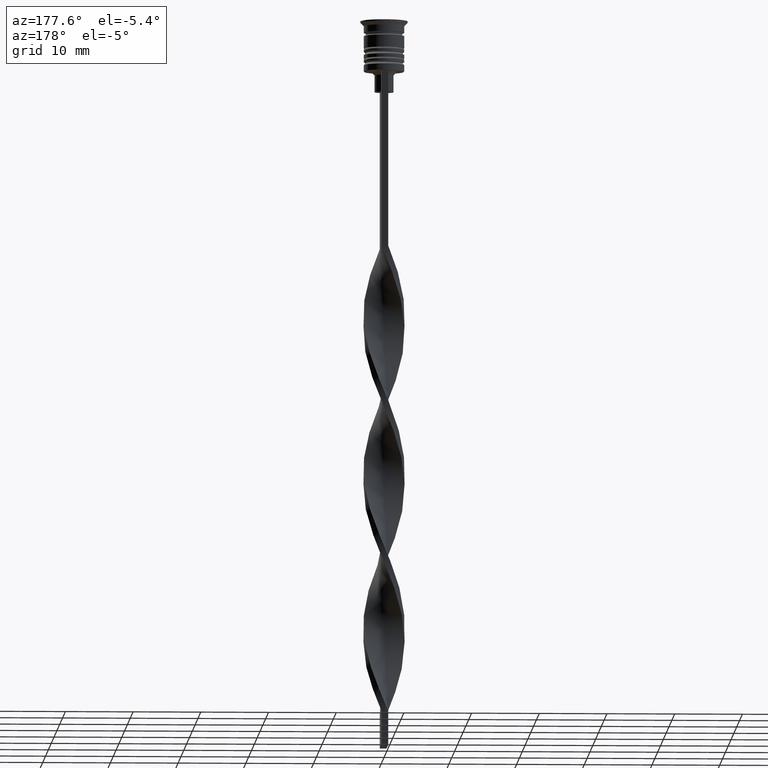
[diagram: clean part render]
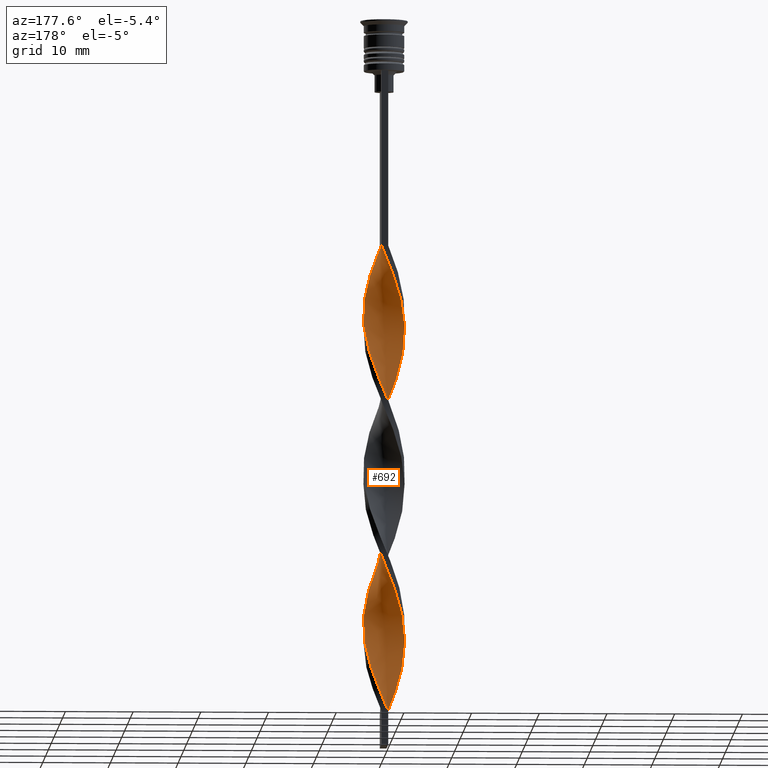
[diagram: same view with one face highlighted and labeled with its STEP entity id]
A machine part, auxiliary view. The second image highlights one B-rep face of the part: STEP entity #692.
In plain terms, the highlighted face is a freeform B-spline surface patch.
Its self-contained STEP definition (entity closure, byte-faithful):
#5 = CARTESIAN_POINT ( 'NONE',  ( 3.038394962421823831, 0.1347443962830572051, -44.11538461538462030 ) ) ;
#7 = CARTESIAN_POINT ( 'NONE',  ( -2.184919224315390984, 2.115686173140295612, -40.57692307692308020 ) ) ;
#22 = VERTEX_POINT ( 'NONE', #2972 ) ;
#23 = CARTESIAN_POINT ( 'NONE',  ( 1.836897528957912362, 2.424006490937744118, -75.96153846153846700 ) ) ;
#24 = CARTESIAN_POINT ( 'NONE',  ( 0.2324760841496463504, -3.032483284421934933, -58.26923076923077360 ) ) ;
#35 = CARTESIAN_POINT ( 'NONE',  ( -0.4999999999999995559, 3.000000000000000000, -102.5000000000000142 ) ) ;
#37 = CARTESIAN_POINT ( 'NONE',  ( 2.982351171577512172, -0.5963065397849001137, -88.34615384615385381 ) ) ;
#48 = CARTESIAN_POINT ( 'NONE',  ( -2.752983971046547129, 1.292702307246639704, -63.57692307692308731 ) ) ;
#51 = CARTESIAN_POINT ( 'NONE',  ( -1.928028413296781762, 2.380983398537114049, -39.69230769230769340 ) ) ;
#71 = CARTESIAN_POINT ( 'NONE',  ( -3.054755894246598658, -0.2341835458667257397, -92.76923076923077360 ) ) ;
#84 = CARTESIAN_POINT ( 'NONE',  ( 2.813682533735953228, 1.212256617197150721, -92.76923076923075939 ) ) ;
#88 = CARTESIAN_POINT ( 'NONE',  ( -2.813682533735953228, 1.212256617197151165, -89.23076923076924061 ) ) ;
#122 = CARTESIAN_POINT ( 'NONE',  ( 2.596021493184669904, 1.626975080790203032, -73.30769230769232081 ) ) ;
#125 = CARTESIAN_POINT ( 'NONE',  ( -2.184919224315390984, 2.115686173140295612, -40.57692307692308020 ) ) ;
#143 = FACE_OUTER_BOUND ( 'NONE', #3193, .T. ) ;
#156 = CARTESIAN_POINT ( 'NONE',  ( 3.038394962421823831, 0.1347443962830572051, -44.11538461538462030 ) ) ;
#158 = CARTESIAN_POINT ( 'NONE',  ( -2.917858282166500228, 0.8579644778149966289, -44.11538461538462030 ) ) ;
#195 = CARTESIAN_POINT ( 'NONE',  ( 1.928028413296782428, 2.380983398537112716, -50.30769230769231370 ) ) ;
#197 = CARTESIAN_POINT ( 'NONE',  ( -2.813682533735953228, 1.212256617197151165, -43.23076923076922640 ) ) ;
#199 = B_SPLINE_CURVE_WITH_KNOTS ( 'NONE', 3,
 ( #2960, #3431, #2913, #1833 ),
 .UNSPECIFIED., .F., .F.,
 ( 4, 4 ),
 ( 0.000000000000000000, 1.000000000000000000 ),
 .UNSPECIFIED. ) ;
#211 = CARTESIAN_POINT ( 'NONE',  ( 1.203417901575699167, -2.793167620134377582, -81.26923076923077360 ) ) ;
#213 = CARTESIAN_POINT ( 'NONE',  ( -0.6006862186325128139, 3.004255577232739949, -82.15384615384617462 ) ) ;
#224 = CARTESIAN_POINT ( 'NONE',  ( 2.131225204431203668, -2.200966749995606264, -83.92307692307693401 ) ) ;
#228 = CARTESIAN_POINT ( 'NONE',  ( 1.203417901575699167, -2.793167620134377582, -35.26923076923077360 ) ) ;
#240 = CARTESIAN_POINT ( 'NONE',  ( 1.615112600636835927, 2.577093573633700174, -97.19230769230770761 ) ) ;
#242 = CARTESIAN_POINT ( 'NONE',  ( -2.131225204431204112, -2.200966749995605820, -98.07692307692308020 ) ) ;
#255 = CARTESIAN_POINT ( 'NONE',  ( -2.813682533735953228, 1.212256617197151165, -89.23076923076922640 ) ) ;
#259 = VERTEX_POINT ( 'NONE', #624 ) ;
#267 = ORIENTED_EDGE ( 'NONE', *, *, #3148, .F. ) ;
#270 = DIRECTION ( 'NONE',  ( 0.000000000000000000, 1.000000000000000000, 0.000000000000000000 ) ) ;
#272 = CARTESIAN_POINT ( 'NONE',  ( 1.928028413296782428, 2.380983398537112716, -50.30769230769232081 ) ) ;
#276 = CARTESIAN_POINT ( 'NONE',  ( -0.9514415033047005643, 2.888729662981513790, -37.03846153846154010 ) ) ;
#294 = CARTESIAN_POINT ( 'NONE',  ( 1.928028413296782428, 2.380983398537112716, -96.30769230769232081 ) ) ;
#295 = CARTESIAN_POINT ( 'NONE',  ( -2.131225204431204112, -2.200966749995605820, -52.07692307692308020 ) ) ;
#304 = CARTESIAN_POINT ( 'NONE',  ( 3.054755894246598658, -0.2341835458667260728, -89.23076923076924061 ) ) ;
#305 = CARTESIAN_POINT ( 'NONE',  ( -2.627746284534977050, -1.531322782470314170, -70.65384615384616041 ) ) ;
#307 = CARTESIAN_POINT ( 'NONE',  ( -1.302196787976888315, 2.773203748730288520, -37.92307692307692690 ) ) ;
#316 = CARTESIAN_POINT ( 'NONE',  ( 1.203417901575699167, -2.793167620134377582, -81.26923076923077360 ) ) ;
#319 = CARTESIAN_POINT ( 'NONE',  ( 2.441810035333999540, -1.850388947743479173, -64.46153846153845279 ) ) ;
#337 = CARTESIAN_POINT ( 'NONE',  ( 3.038394962421823831, 0.1347443962830572051, -90.11538461538462741 ) ) ;
#352 = CARTESIAN_POINT ( 'NONE',  ( 2.184919224315391872, 2.115686173140295168, -95.42307692307693401 ) ) ;
#356 = CARTESIAN_POINT ( 'NONE',  ( 1.928028413296780874, -2.380983398537114493, -62.69230769230770051 ) ) ;
#394 = CARTESIAN_POINT ( 'NONE',  ( 0.4999999999999998890, 3.000000000000000000, -79.50000000000001421 ) ) ;
#397 = CARTESIAN_POINT ( 'NONE',  ( -2.909946448908425243, -0.9584295337030731554, -48.53846153846154010 ) ) ;
#411 = CARTESIAN_POINT ( 'NONE',  ( -2.131225204431203668, 2.200966749995606708, -60.92307692307692690 ) ) ;
#414 = CARTESIAN_POINT ( 'NONE',  ( 2.184919224315390984, -2.115686173140295612, -63.57692307692308731 ) ) ;
#427 = CARTESIAN_POINT ( 'NONE',  ( 2.184919224315391872, 2.115686173140295168, -49.42307692307693401 ) ) ;
#431 = CARTESIAN_POINT ( 'NONE',  ( -1.203417901575700277, -2.793167620134377138, -54.73076923076923350 ) ) ;
#451 = CARTESIAN_POINT ( 'NONE',  ( -2.596021493184667683, 1.626975080790206141, -62.69230769230770051 ) ) ;
#454 = CARTESIAN_POINT ( 'NONE',  ( 1.928028413296780874, -2.380983398537114049, -62.69230769230770051 ) ) ;
#466 = VERTEX_POINT ( 'NONE', #1927 ) ;
#468 = CARTESIAN_POINT ( 'NONE',  ( -1.615112600636836371, -2.577093573633699730, -74.19230769230769340 ) ) ;
#470 = CARTESIAN_POINT ( 'NONE',  ( -0.8642659496667827179, -2.939289008388869640, -101.6153846153846132 ) ) ;
#482 = CARTESIAN_POINT ( 'NONE',  ( -0.1357340503332169490, 3.060710991611130360, -55.61538461538462741 ) ) ;
#484 = CARTESIAN_POINT ( 'NONE',  ( 2.917858282166500672, 0.8579644778149956297, -45.88461538461538680 ) ) ;
#504 = CARTESIAN_POINT ( 'NONE',  ( -2.909946448908425243, -0.9584295337030731554, -94.53846153846153300 ) ) ;
#519 = CARTESIAN_POINT ( 'NONE',  ( -1.302196787976888093, 2.773203748730288520, -83.92307692307691980 ) ) ;
#520 = CARTESIAN_POINT ( 'NONE',  ( -0.1357340503332189752, -3.060710991611130360, -57.38461538461538680 ) ) ;
#534 = CARTESIAN_POINT ( 'NONE',  ( -2.752983971046547129, -1.292702307246638815, -95.42307692307693401 ) ) ;
#535 = CARTESIAN_POINT ( 'NONE',  ( -2.982351171577512616, -0.5963065397848991145, -47.65384615384616041 ) ) ;
#546 = CARTESIAN_POINT ( 'NONE',  ( 2.813682533735953228, 1.212256617197150721, -92.76923076923077360 ) ) ;
#553 = CARTESIAN_POINT ( 'NONE',  ( -2.752983971046547129, -1.292702307246638815, -49.42307692307693401 ) ) ;
#571 = CARTESIAN_POINT ( 'NONE',  ( -1.542569853484615727, 2.647046231879885525, -59.15384615384616041 ) ) ;
#573 = CARTESIAN_POINT ( 'NONE',  ( -0.6006862186325128139, 3.004255577232739949, -36.15384615384615330 ) ) ;
#583 = CARTESIAN_POINT ( 'NONE',  ( -2.909946448908424799, 0.9584295337030754869, -64.46153846153845279 ) ) ;
#586 = CARTESIAN_POINT ( 'NONE',  ( 2.363623348807936786, 1.913970915392904315, -74.19230769230769340 ) ) ;
#598 = CARTESIAN_POINT ( 'NONE',  ( -2.982351171577512172, 0.5963065397849003357, -65.34615384615385381 ) ) ;
#602 = CARTESIAN_POINT ( 'NONE',  ( 2.131225204431204556, 2.200966749995605820, -75.07692307692308020 ) ) ;
#619 = CARTESIAN_POINT ( 'NONE',  ( -3.054755894246598658, 0.2341835458667258230, -66.23076923076922640 ) ) ;
#624 = CARTESIAN_POINT ( 'NONE',  ( -0.4999999999999995559, 3.000000000000000000, -102.5000000000000142 ) ) ;
#641 = CARTESIAN_POINT ( 'NONE',  ( -0.2324760841496473773, 3.032483284421934933, -35.26923076923077360 ) ) ;
#655 = CARTESIAN_POINT ( 'NONE',  ( -3.038394962421823386, 0.1347443962830582320, -91.88461538461540101 ) ) ;
#658 = CARTESIAN_POINT ( 'NONE',  ( 2.982351171577512616, 0.5963065397848995586, -70.65384615384616041 ) ) ;
#678 = CARTESIAN_POINT ( 'NONE',  ( 0.1357340503332165882, -3.060710991611130805, -78.61538461538461320 ) ) ;
#681 = CARTESIAN_POINT ( 'NONE',  ( -2.363623348807936342, -1.913970915392904981, -51.19230769230769340 ) ) ;
#692 = ADVANCED_FACE ( 'NONE', ( #143 ), #2614, .T. ) ;
#698 = CARTESIAN_POINT ( 'NONE',  ( -2.752983971046547129, 1.292702307246639704, -63.57692307692308731 ) ) ;
#701 = CARTESIAN_POINT ( 'NONE',  ( -1.836897528957911030, -2.424006490937745006, -52.96153846153845990 ) ) ;
#719 = CARTESIAN_POINT ( 'NONE',  ( 1.542569853484617060, -2.647046231879885081, -36.15384615384615330 ) ) ;
#721 = CARTESIAN_POINT ( 'NONE',  ( 2.627746284534976606, -1.531322782470315058, -65.34615384615385381 ) ) ;
#741 = CARTESIAN_POINT ( 'NONE',  ( -2.363623348807935898, 1.913970915392906536, -61.80769230769231370 ) ) ;
#745 = CARTESIAN_POINT ( 'NONE',  ( -2.917858282166500228, 0.8579644778149966289, -90.11538461538462741 ) ) ;
#756 = CARTESIAN_POINT ( 'NONE',  ( 2.363623348807935898, -1.913970915392906091, -38.80769230769230660 ) ) ;
#759 = CARTESIAN_POINT ( 'NONE',  ( -3.022034030597048559, 0.5036723384328415376, -91.00000000000001421 ) ) ;
#772 = CARTESIAN_POINT ( 'NONE',  ( 1.302196787976888759, 2.773203748730288076, -52.07692307692308020 ) ) ;
#787 = CARTESIAN_POINT ( 'NONE',  ( 2.131225204431204556, 2.200966749995605820, -75.07692307692308020 ) ) ;
#788 = CARTESIAN_POINT ( 'NONE',  ( -0.8642659496667828289, -2.939289008388869640, -55.61538461538462741 ) ) ;
#804 = CARTESIAN_POINT ( 'NONE',  ( -0.4999999999999995559, 3.000000000000000000, -56.50000000000000711 ) ) ;
#822 = CARTESIAN_POINT ( 'NONE',  ( 1.302196787976888093, -2.773203748730288964, -60.92307692307692690 ) ) ;
#831 = CARTESIAN_POINT ( 'NONE',  ( 0.9514415033047012304, 2.888729662981513346, -98.96153846153848122 ) ) ;
#833 = ORIENTED_EDGE ( 'NONE', *, *, #2757, .T. ) ;
#835 = CARTESIAN_POINT ( 'NONE',  ( 0.4999999999999998890, -3.000000000000000000, -79.50000000000001421 ) ) ;
#850 = CARTESIAN_POINT ( 'NONE',  ( -0.4999999999999995559, 3.000000000000000000, -102.5000000000000142 ) ) ;
#853 = CARTESIAN_POINT ( 'NONE',  ( -3.022034030597048559, 0.5036723384328415376, -45.00000000000000711 ) ) ;
#864 = CARTESIAN_POINT ( 'NONE',  ( -2.917858282166500228, 0.8579644778149966289, -90.11538461538462741 ) ) ;
#877 = CARTESIAN_POINT ( 'NONE',  ( -0.2324760841496502084, -3.032483284421934489, -77.73076923076924061 ) ) ;
#881 = CARTESIAN_POINT ( 'NONE',  ( 2.813682533735953228, -1.212256617197150721, -66.23076923076922640 ) ) ;
#918 = CARTESIAN_POINT ( 'NONE',  ( -1.615112600636834816, 2.577093573633700618, -84.80769230769232081 ) ) ;
#938 = CARTESIAN_POINT ( 'NONE',  ( -2.441810035334000872, 1.850388947743477841, -87.46153846153849543 ) ) ;
#962 = CARTESIAN_POINT ( 'NONE',  ( 2.917858282166500672, 0.8579644778149956297, -45.88461538461538680 ) ) ;
#965 = CARTESIAN_POINT ( 'NONE',  ( 0.1357340503332183645, 3.060710991611130360, -34.38461538461538680 ) ) ;
#980 = CARTESIAN_POINT ( 'NONE',  ( -0.8642659496667810526, 2.939289008388869640, -57.38461538461538680 ) ) ;
#982 = CARTESIAN_POINT ( 'NONE',  ( 1.615112600636834372, -2.577093573633701062, -61.80769230769231370 ) ) ;
#995 = CARTESIAN_POINT ( 'NONE',  ( -2.184919224315392317, -2.115686173140294724, -72.42307692307691980 ) ) ;
#997 = CARTESIAN_POINT ( 'NONE',  ( -2.131225204431204112, -2.200966749995605820, -52.07692307692308020 ) ) ;
#1016 = CARTESIAN_POINT ( 'NONE',  ( 2.982351171577512172, -0.5963065397849001137, -42.34615384615385381 ) ) ;
#1019 = CARTESIAN_POINT ( 'NONE',  ( 0.8642659496667817187, -2.939289008388869640, -34.38461538461538680 ) ) ;
#1033 = CARTESIAN_POINT ( 'NONE',  ( 0.8642659496667831620, 2.939289008388869195, -78.61538461538461320 ) ) ;
#1046 = CARTESIAN_POINT ( 'NONE',  ( 2.909946448908426131, 0.9584295337030716011, -71.53846153846154721 ) ) ;
#1048 = CARTESIAN_POINT ( 'NONE',  ( -1.836897528957911030, -2.424006490937745006, -52.96153846153845990 ) ) ;
#1066 = CARTESIAN_POINT ( 'NONE',  ( 2.596021493184668572, -1.626975080790205919, -85.69230769230770761 ) ) ;
#1069 = CARTESIAN_POINT ( 'NONE',  ( 0.6006862186325140351, 3.004255577232739949, -53.84615384615384670 ) ) ;
#1070 = CARTESIAN_POINT ( 'NONE',  ( -2.627746284534976606, 1.531322782470314836, -42.34615384615385381 ) ) ;
#1086 = CARTESIAN_POINT ( 'NONE',  ( 1.542569853484618170, 2.647046231879884193, -76.84615384615386802 ) ) ;
#1087 = CARTESIAN_POINT ( 'NONE',  ( 0.6006862186325115927, -3.004255577232740393, -59.15384615384616041 ) ) ;
#1097 = CARTESIAN_POINT ( 'NONE',  ( -3.038394962421823831, -0.1347443962830561781, -67.11538461538461320 ) ) ;
#1127 = CARTESIAN_POINT ( 'NONE',  ( -2.917858282166500672, -0.8579644778149938533, -68.88461538461538680 ) ) ;
#1130 = CARTESIAN_POINT ( 'NONE',  ( -2.596021493184668572, -1.626975080790204586, -96.30769230769232081 ) ) ;
#1141 = CARTESIAN_POINT ( 'NONE',  ( -0.1357340503332169768, 3.060710991611130360, -101.6153846153846132 ) ) ;
#1181 = CARTESIAN_POINT ( 'NONE',  ( 3.054755894246598658, 0.2341835458667245740, -69.76923076923077360 ) ) ;
#1183 = CARTESIAN_POINT ( 'NONE',  ( 3.038394962421823386, -0.1347443962830599251, -68.88461538461538680 ) ) ;
#1195 = CARTESIAN_POINT ( 'NONE',  ( -2.752983971046547129, -1.292702307246638815, -95.42307692307693401 ) ) ;
#1198 = CARTESIAN_POINT ( 'NONE',  ( -0.9514415033047005643, 2.888729662981513790, -37.03846153846154010 ) ) ;
#1237 = CARTESIAN_POINT ( 'NONE',  ( 2.813682533735953228, 1.212256617197150721, -46.76923076923077360 ) ) ;
#1239 = CARTESIAN_POINT ( 'NONE',  ( -2.596021493184668572, -1.626975080790204364, -50.30769230769232081 ) ) ;
#1243 = VERTEX_POINT ( 'NONE', #2610 ) ;
#1253 = CARTESIAN_POINT ( 'NONE',  ( 0.9514415033047012304, 2.888729662981513346, -52.96153846153845990 ) ) ;
#1255 = CARTESIAN_POINT ( 'NONE',  ( 3.022034030597048559, -0.5036723384328418707, -68.00000000000000000 ) ) ;
#1270 = CARTESIAN_POINT ( 'NONE',  ( 1.542569853484617060, -2.647046231879885081, -82.15384615384617462 ) ) ;
#1272 = CARTESIAN_POINT ( 'NONE',  ( 0.4999999999999998890, 3.000000000000000000, -79.50000000000001421 ) ) ;
#1290 = CARTESIAN_POINT ( 'NONE',  ( -1.928028413296783983, -2.380983398537111828, -73.30769230769232081 ) ) ;
#1293 = CARTESIAN_POINT ( 'NONE',  ( -1.203417901575700277, -2.793167620134377138, -100.7307692307692406 ) ) ;
#1307 = CARTESIAN_POINT ( 'NONE',  ( 2.363623348807936786, 1.913970915392904315, -74.19230769230769340 ) ) ;
#1308 = CARTESIAN_POINT ( 'NONE',  ( -3.038394962421823386, 0.1347443962830582320, -45.88461538461538680 ) ) ;
#1321 = CARTESIAN_POINT ( 'NONE',  ( 2.441810035334000872, 1.850388947743477397, -94.53846153846154721 ) ) ;
#1323 = CARTESIAN_POINT ( 'NONE',  ( -1.928028413296781762, 2.380983398537113604, -85.69230769230770761 ) ) ;
#1346 = CARTESIAN_POINT ( 'NONE',  ( -1.836897528957911030, -2.424006490937745006, -98.96153846153848122 ) ) ;
#1359 = CARTESIAN_POINT ( 'NONE',  ( 1.302196787976888759, 2.773203748730288076, -98.07692307692308020 ) ) ;
#1371 = CARTESIAN_POINT ( 'NONE',  ( -0.1357340503332169490, 3.060710991611130360, -101.6153846153846274 ) ) ;
#1372 = CARTESIAN_POINT ( 'NONE',  ( 2.909946448908425243, -0.9584295337030735995, -87.46153846153849543 ) ) ;
#1389 = CARTESIAN_POINT ( 'NONE',  ( 2.627746284534977050, 1.531322782470313726, -93.65384615384617462 ) ) ;
#1394 = CARTESIAN_POINT ( 'NONE',  ( 1.203417901575701610, 2.793167620134376250, -77.73076923076924061 ) ) ;
#1411 = CARTESIAN_POINT ( 'NONE',  ( -0.6006862186325142572, -3.004255577232739949, -76.84615384615386802 ) ) ;
#1414 = CARTESIAN_POINT ( 'NONE',  ( 1.615112600636834372, -2.577093573633701062, -61.80769230769231370 ) ) ;
#1432 = CARTESIAN_POINT ( 'NONE',  ( 2.917858282166500228, -0.8579644778149976281, -67.11538461538461320 ) ) ;
#1446 = CARTESIAN_POINT ( 'NONE',  ( 3.022034030597048559, -0.5036723384328418707, -68.00000000000000000 ) ) ;
#1468 = CARTESIAN_POINT ( 'NONE',  ( 3.038394962421823386, -0.1347443962830599251, -68.88461538461538680 ) ) ;
#1471 = CARTESIAN_POINT ( 'NONE',  ( -1.928028413296781762, 2.380983398537113604, -39.69230769230769340 ) ) ;
#1487 = CARTESIAN_POINT ( 'NONE',  ( 3.022034030597048559, 0.5036723384328410935, -45.00000000000000711 ) ) ;
#1506 = CARTESIAN_POINT ( 'NONE',  ( 0.6006862186325140351, 3.004255577232739949, -53.84615384615384670 ) ) ;
#1510 = CARTESIAN_POINT ( 'NONE',  ( 1.302196787976887871, -2.773203748730288964, -60.92307692307691980 ) ) ;
#1528 = CARTESIAN_POINT ( 'NONE',  ( -3.054755894246598658, 0.2341835458667258507, -66.23076923076922640 ) ) ;
#1545 = CARTESIAN_POINT ( 'NONE',  ( 1.203417901575699167, -2.793167620134377582, -35.26923076923077360 ) ) ;
#1547 = CARTESIAN_POINT ( 'NONE',  ( -2.982351171577512616, -0.5963065397848991145, -93.65384615384617462 ) ) ;
#1559 = CARTESIAN_POINT ( 'NONE',  ( -2.627746284534977050, -1.531322782470314170, -70.65384615384616041 ) ) ;
#1561 = CARTESIAN_POINT ( 'NONE',  ( 1.203417901575701610, 2.793167620134376250, -77.73076923076924061 ) ) ;
#1577 = CARTESIAN_POINT ( 'NONE',  ( 2.917858282166500672, 0.8579644778149956297, -91.88461538461540101 ) ) ;
#1579 = CARTESIAN_POINT ( 'NONE',  ( 0.4999999999999998890, -3.000000000000000000, -33.50000000000000000 ) ) ;
#1594 = CARTESIAN_POINT ( 'NONE',  ( -2.627746284534976606, 1.531322782470314836, -88.34615384615385381 ) ) ;
#1608 = CARTESIAN_POINT ( 'NONE',  ( 3.054755894246598658, -0.2341835458667260450, -43.23076923076922640 ) ) ;
#1609 = CARTESIAN_POINT ( 'NONE',  ( -1.542569853484617726, -2.647046231879884193, -53.84615384615384670 ) ) ;
#1623 = CARTESIAN_POINT ( 'NONE',  ( 2.184919224315391872, 2.115686173140295168, -95.42307692307693401 ) ) ;
#1624 = ORIENTED_EDGE ( 'NONE', *, *, #2710, .F. ) ;
#1627 = CARTESIAN_POINT ( 'NONE',  ( 3.022034030597048559, 0.5036723384328410935, -91.00000000000001421 ) ) ;
#1629 = CARTESIAN_POINT ( 'NONE',  ( -2.596021493184668572, -1.626975080790204586, -50.30769230769231370 ) ) ;
#1641 = CARTESIAN_POINT ( 'NONE',  ( 1.302196787976888759, 2.773203748730288076, -98.07692307692309441 ) ) ;
#1642 = CARTESIAN_POINT ( 'NONE',  ( 1.615112600636835927, 2.577093573633700174, -97.19230769230770761 ) ) ;
#1651 =( BOUNDED_CURVE ( )  B_SPLINE_CURVE ( 2, ( #3151, #2311, #1545, #719, #2288, #2621, #756, #3404, #3075, #2360, #1016, #3352, #156, #1487, #962, #1237, #1784, #2567, #427, #195, #2030, #3096, #1253, #1506, #3385, #482, #3369, #980, #2049, #2844, #3115, #411, #741, #451, #698, #3422, #1807, #1528, #1766, #2825, #2547, #2591, #1559, #2327, #995, #1290, #468, #2066, #2341, #2865, #2009, #678, #3131, #2605, #211, #1270, #2807, #224, #2089, #1066, #3225, #2698, #2102, #304, #2437, #2918, #1577, #546, #2167, #1321, #1623, #3200, #240, #1641, #831, #2425, #3165, #1371, #35 ),
 .UNSPECIFIED., .F., .T. ) 
 B_SPLINE_CURVE_WITH_KNOTS ( ( 3, 2, 2, 2, 2, 2, 2, 2, 2, 2, 2, 2, 2, 2, 2, 2, 2, 2, 2, 2, 2, 2, 2, 2, 2, 2, 2, 2, 2, 2, 2, 2, 2, 2, 2, 2, 2, 2, 2, 3 ),
 ( 0.000000000000000000, 0.01923076923076923184, 0.03846153846153846367, 0.05769230769230768857, 0.07692307692307692735, 0.09615384615384615918, 0.1153846153846153771, 0.1346153846153846090, 0.1538461538461538547, 0.1730769230769230449, 0.1923076923076923184, 0.2115384615384615363, 0.2307692307692307543, 0.2500000000000000000, 0.2692307692307692180, 0.2884615384615384359, 0.3076923076923077094, 0.3269230769230769273, 0.3461538461538460898, 0.3653846153846153633, 0.3846153846153846367, 0.4038461538461539102, 0.4230769230769230727, 0.4423076923076922906, 0.4615384615384615086, 0.4807692307692307820, 0.5000000000000000000, 0.5192307692307692735, 0.5384615384615384359, 0.5576923076923077094, 0.5769230769230768718, 0.5961538461538461453, 0.6153846153846154188, 0.6346153846153845812, 0.6538461538461538547, 0.6730769230769230171, 0.6923076923076921796, 0.7115384615384615641, 0.7307692307692307265, 0.7500000000000000000 ),
 .UNSPECIFIED. ) 
 CURVE ( )  GEOMETRIC_REPRESENTATION_ITEM ( )  RATIONAL_B_SPLINE_CURVE ( ( 1.000000000000000000, 0.9927088740980539727, 1.000000000000000000, 0.9927088740980539727, 1.000000000000000000, 0.9927088740980539727, 1.000000000000000000, 0.9927088740980539727, 1.000000000000000000, 0.9927088740980539727, 1.000000000000000000, 0.9927088740980539727, 1.000000000000000000, 0.9927088740980539727, 1.000000000000000000, 0.9927088740980539727, 1.000000000000000000, 0.9927088740980539727, 1.000000000000000000, 0.9927088740980539727, 1.000000000000000000, 0.9927088740980539727, 1.000000000000000000, 0.9927088740980539727, 1.000000000000000000, 0.9927088740980539727, 1.000000000000000000, 0.9927088740980539727, 1.000000000000000000, 0.9927088740980539727, 1.000000000000000000, 0.9927088740980539727, 1.000000000000000000, 0.9927088740980539727, 1.000000000000000000, 0.9927088740980539727, 1.000000000000000000, 0.9927088740980539727, 1.000000000000000000, 0.9927088740980539727, 1.000000000000000000, 0.9927088740980539727, 1.000000000000000000, 0.9927088740980539727, 1.000000000000000000, 0.9927088740980539727, 1.000000000000000000, 0.9927088740980539727, 1.000000000000000000, 0.9927088740980539727, 1.000000000000000000, 0.9927088740980539727, 1.000000000000000000, 0.9927088740980539727, 1.000000000000000000, 0.9927088740980539727, 1.000000000000000000, 0.9927088740980539727, 1.000000000000000000, 0.9927088740980539727, 1.000000000000000000, 0.9927088740980539727, 1.000000000000000000, 0.9927088740980539727, 1.000000000000000000, 0.9927088740980539727, 1.000000000000000000, 0.9927088740980539727, 1.000000000000000000, 0.9927088740980539727, 1.000000000000000000, 0.9927088740980539727, 1.000000000000000000, 0.9927088740980539727, 1.000000000000000000, 0.9927088740980539727, 1.000000000000000000, 0.9927088740980539727, 1.000000000000000000 ) ) 
 REPRESENTATION_ITEM ( '' )  );
#1657 = CARTESIAN_POINT ( 'NONE',  ( 1.542569853484617060, -2.647046231879885081, -82.15384615384617462 ) ) ;
#1660 = CARTESIAN_POINT ( 'NONE',  ( 1.836897528957912362, 2.424006490937744118, -75.96153846153846700 ) ) ;
#1673 = CARTESIAN_POINT ( 'NONE',  ( 2.752983971046547129, -1.292702307246639704, -86.57692307692308020 ) ) ;
#1674 = VECTOR ( 'NONE', #270, 1000.000000000000000 ) ;
#1678 = CARTESIAN_POINT ( 'NONE',  ( -2.982351171577512616, -0.5963065397848991145, -93.65384615384617462 ) ) ;
#1693 = CARTESIAN_POINT ( 'NONE',  ( -1.615112600636836371, -2.577093573633699730, -74.19230769230769340 ) ) ;
#1725 = CARTESIAN_POINT ( 'NONE',  ( -2.909946448908425687, -0.9584295337030731554, -94.53846153846154721 ) ) ;
#1751 = CARTESIAN_POINT ( 'NONE',  ( -0.8642659496667827179, -2.939289008388869640, -55.61538461538462741 ) ) ;
#1766 = CARTESIAN_POINT ( 'NONE',  ( -3.038394962421823831, -0.1347443962830561781, -67.11538461538461320 ) ) ;
#1769 = CARTESIAN_POINT ( 'NONE',  ( -1.542569853484617948, -2.647046231879884193, -53.84615384615384670 ) ) ;
#1784 = CARTESIAN_POINT ( 'NONE',  ( 2.627746284534977050, 1.531322782470313726, -47.65384615384616041 ) ) ;
#1787 = CARTESIAN_POINT ( 'NONE',  ( 2.813682533735953228, -1.212256617197150721, -66.23076923076922640 ) ) ;
#1807 = CARTESIAN_POINT ( 'NONE',  ( -2.982351171577512172, 0.5963065397849003357, -65.34615384615385381 ) ) ;
#1809 = CARTESIAN_POINT ( 'NONE',  ( -3.038394962421823386, 0.1347443962830582320, -91.88461538461540101 ) ) ;
#1826 = CARTESIAN_POINT ( 'NONE',  ( -0.5000000000000002220, -3.000000000000000000, -102.5000000000000142 ) ) ;
#1833 = CARTESIAN_POINT ( 'NONE',  ( -0.4999999999999995559, 3.000000000000000000, -102.5000000000000142 ) ) ;
#1839 = CARTESIAN_POINT ( 'NONE',  ( 0.9514415033047012304, 2.888729662981513346, -52.96153846153845990 ) ) ;
#1859 = CARTESIAN_POINT ( 'NONE',  ( 2.184919224315391872, 2.115686173140295168, -49.42307692307693401 ) ) ;
#1872 = CARTESIAN_POINT ( 'NONE',  ( -0.8642659496667810526, 2.939289008388869640, -57.38461538461538680 ) ) ;
#1873 = CARTESIAN_POINT ( 'NONE',  ( -2.917858282166500228, 0.8579644778149966289, -44.11538461538462030 ) ) ;
#1889 = CARTESIAN_POINT ( 'NONE',  ( 2.441810035334000872, 1.850388947743477175, -94.53846153846153300 ) ) ;
#1890 = CARTESIAN_POINT ( 'NONE',  ( -2.909946448908425687, -0.9584295337030731554, -48.53846153846154721 ) ) ;
#1909 = CARTESIAN_POINT ( 'NONE',  ( -1.928028413296783983, -2.380983398537111828, -73.30769230769232081 ) ) ;
#1922 = CARTESIAN_POINT ( 'NONE',  ( 3.054755894246598658, -0.2341835458667260450, -89.23076923076922640 ) ) ;
#1927 = CARTESIAN_POINT ( 'NONE',  ( -0.5000000000000002220, -3.000000000000000000, -102.5000000000000142 ) ) ;
#1939 = CARTESIAN_POINT ( 'NONE',  ( -1.542569853484617726, -2.647046231879884193, -99.84615384615386802 ) ) ;
#1952 = CARTESIAN_POINT ( 'NONE',  ( -2.441810035334001761, -1.850388947743476509, -71.53846153846154721 ) ) ;
#1956 = CARTESIAN_POINT ( 'NONE',  ( 1.542569853484617948, 2.647046231879884193, -76.84615384615386802 ) ) ;
#1973 = CARTESIAN_POINT ( 'NONE',  ( -2.184919224315390984, 2.115686173140295612, -86.57692307692308020 ) ) ;
#1989 = CARTESIAN_POINT ( 'NONE',  ( -1.928028413296781762, 2.380983398537114049, -85.69230769230770761 ) ) ;
#2009 = CARTESIAN_POINT ( 'NONE',  ( -0.2324760841496502084, -3.032483284421934489, -77.73076923076924061 ) ) ;
#2014 = CARTESIAN_POINT ( 'NONE',  ( -2.441810035334000872, 1.850388947743477619, -41.46153846153846700 ) ) ;
#2030 = CARTESIAN_POINT ( 'NONE',  ( 1.615112600636835927, 2.577093573633700174, -51.19230769230769340 ) ) ;
#2049 = CARTESIAN_POINT ( 'NONE',  ( -1.203417901575698279, 2.793167620134377582, -58.26923076923077360 ) ) ;
#2051 = CARTESIAN_POINT ( 'NONE',  ( 2.441810035333999540, -1.850388947743478951, -64.46153846153845279 ) ) ;
#2066 = CARTESIAN_POINT ( 'NONE',  ( -1.302196787976888759, -2.773203748730288076, -75.07692307692308020 ) ) ;
#2068 = CARTESIAN_POINT ( 'NONE',  ( -0.1357340503332189474, -3.060710991611130360, -57.38461538461538680 ) ) ;
#2089 = CARTESIAN_POINT ( 'NONE',  ( 2.363623348807935898, -1.913970915392906091, -84.80769230769232081 ) ) ;
#2091 = CARTESIAN_POINT ( 'NONE',  ( 2.982351171577512172, -0.5963065397849001137, -42.34615384615385381 ) ) ;
#2102 = CARTESIAN_POINT ( 'NONE',  ( 2.982351171577512172, -0.5963065397849001137, -88.34615384615385381 ) ) ;
#2105 = CARTESIAN_POINT ( 'NONE',  ( -3.054755894246598658, -0.2341835458667257397, -92.76923076923075939 ) ) ;
#2118 = CARTESIAN_POINT ( 'NONE',  ( 2.752983971046547573, 1.292702307246638371, -72.42307692307691980 ) ) ;
#2120 = CARTESIAN_POINT ( 'NONE',  ( 0.4999999999999998890, 3.000000000000000000, -33.50000000000000000 ) ) ;
#2140 = CARTESIAN_POINT ( 'NONE',  ( -0.1357340503332169768, 3.060710991611130360, -55.61538461538462741 ) ) ;
#2156 = CARTESIAN_POINT ( 'NONE',  ( -1.203417901575698279, 2.793167620134377582, -58.26923076923077360 ) ) ;
#2157 = CARTESIAN_POINT ( 'NONE',  ( -2.363623348807936342, -1.913970915392904981, -51.19230769230769340 ) ) ;
#2167 = CARTESIAN_POINT ( 'NONE',  ( 2.627746284534977050, 1.531322782470313726, -93.65384615384617462 ) ) ;
#2190 = CARTESIAN_POINT ( 'NONE',  ( -2.441810035334000872, 1.850388947743477841, -41.46153846153846700 ) ) ;
#2199 = CARTESIAN_POINT ( 'NONE',  ( -2.596021493184667683, 1.626975080790206141, -62.69230769230770051 ) ) ;
#2203 = CARTESIAN_POINT ( 'NONE',  ( -2.131225204431204112, -2.200966749995605820, -98.07692307692309441 ) ) ;
#2254 = CARTESIAN_POINT ( 'NONE',  ( -0.6006862186325128139, 3.004255577232739949, -82.15384615384617462 ) ) ;
#2257 = CARTESIAN_POINT ( 'NONE',  ( -2.627746284534976606, 1.531322782470314836, -42.34615384615385381 ) ) ;
#2270 = CARTESIAN_POINT ( 'NONE',  ( -2.363623348807936342, -1.913970915392904981, -97.19230769230770761 ) ) ;
#2288 = CARTESIAN_POINT ( 'NONE',  ( 1.836897528957910364, -2.424006490937745451, -37.03846153846154010 ) ) ;
#2294 = CARTESIAN_POINT ( 'NONE',  ( -0.6006862186325128139, 3.004255577232739949, -36.15384615384615330 ) ) ;
#2311 = CARTESIAN_POINT ( 'NONE',  ( 0.8642659496667816077, -2.939289008388869640, -34.38461538461538680 ) ) ;
#2313 = CARTESIAN_POINT ( 'NONE',  ( -2.752983971046547129, -1.292702307246638815, -49.42307692307693401 ) ) ;
#2327 = CARTESIAN_POINT ( 'NONE',  ( -2.441810035334001761, -1.850388947743476509, -71.53846153846154721 ) ) ;
#2329 = CARTESIAN_POINT ( 'NONE',  ( -3.022034030597048559, 0.5036723384328415376, -45.00000000000000711 ) ) ;
#2341 = CARTESIAN_POINT ( 'NONE',  ( -0.9514415033047030068, -2.888729662981513346, -75.96153846153846700 ) ) ;
#2343 = CARTESIAN_POINT ( 'NONE',  ( -2.596021493184668572, -1.626975080790204364, -96.30769230769232081 ) ) ;
#2360 = CARTESIAN_POINT ( 'NONE',  ( 2.909946448908425687, -0.9584295337030735995, -41.46153846153846700 ) ) ;
#2363 = CARTESIAN_POINT ( 'NONE',  ( 2.627746284534977050, 1.531322782470313726, -47.65384615384616041 ) ) ;
#2375 = CARTESIAN_POINT ( 'NONE',  ( -1.542569853484617948, -2.647046231879884193, -99.84615384615385381 ) ) ;
#2377 = CARTESIAN_POINT ( 'NONE',  ( -3.054755894246598658, -0.2341835458667257397, -46.76923076923077360 ) ) ;
#2385 =( BOUNDED_CURVE ( )  B_SPLINE_CURVE ( 2, ( #2120, #3249, #2970, #573, #276, #307, #2441, #51, #7, #2190, #1070, #3202, #1873, #853, #1308, #2377, #535, #1890, #553, #1629, #2157, #295, #1048, #1609, #2414, #788, #3183, #520, #24, #1087, #3215, #822, #1414, #356, #3262, #319, #3037, #881, #1432, #1446, #1468, #1181, #2983, #3296, #2508, #122, #586, #602, #1660, #1956, #1394, #2486, #394, #2717, #2457, #2254, #3311, #3327, #918, #1989, #1973, #938, #3054, #88, #864, #2752, #655, #71, #1678, #1725, #1195, #1130, #2270, #2203, #2472, #1939, #2787, #2528, #3275 ),
 .UNSPECIFIED., .F., .T. ) 
 B_SPLINE_CURVE_WITH_KNOTS ( ( 3, 2, 2, 2, 2, 2, 2, 2, 2, 2, 2, 2, 2, 2, 2, 2, 2, 2, 2, 2, 2, 2, 2, 2, 2, 2, 2, 2, 2, 2, 2, 2, 2, 2, 2, 2, 2, 2, 2, 3 ),
 ( 0.000000000000000000, 0.01923076923076923184, 0.03846153846153846367, 0.05769230769230768857, 0.07692307692307692735, 0.09615384615384615918, 0.1153846153846153771, 0.1346153846153846090, 0.1538461538461538547, 0.1730769230769230449, 0.1923076923076923184, 0.2115384615384615363, 0.2307692307692307543, 0.2500000000000000000, 0.2692307692307692180, 0.2884615384615384359, 0.3076923076923077094, 0.3269230769230769273, 0.3461538461538460898, 0.3653846153846153633, 0.3846153846153846367, 0.4038461538461539102, 0.4230769230769230727, 0.4423076923076922906, 0.4615384615384615086, 0.4807692307692307820, 0.5000000000000000000, 0.5192307692307692735, 0.5384615384615384359, 0.5576923076923077094, 0.5769230769230768718, 0.5961538461538461453, 0.6153846153846154188, 0.6346153846153845812, 0.6538461538461538547, 0.6730769230769230171, 0.6923076923076921796, 0.7115384615384615641, 0.7307692307692307265, 0.7500000000000000000 ),
 .UNSPECIFIED. ) 
 CURVE ( )  GEOMETRIC_REPRESENTATION_ITEM ( )  RATIONAL_B_SPLINE_CURVE ( ( 1.000000000000000000, 0.9927088740980539727, 1.000000000000000000, 0.9927088740980539727, 1.000000000000000000, 0.9927088740980539727, 1.000000000000000000, 0.9927088740980539727, 1.000000000000000000, 0.9927088740980539727, 1.000000000000000000, 0.9927088740980539727, 1.000000000000000000, 0.9927088740980539727, 1.000000000000000000, 0.9927088740980539727, 1.000000000000000000, 0.9927088740980539727, 1.000000000000000000, 0.9927088740980539727, 1.000000000000000000, 0.9927088740980539727, 1.000000000000000000, 0.9927088740980539727, 1.000000000000000000, 0.9927088740980539727, 1.000000000000000000, 0.9927088740980539727, 1.000000000000000000, 0.9927088740980539727, 1.000000000000000000, 0.9927088740980539727, 1.000000000000000000, 0.9927088740980539727, 1.000000000000000000, 0.9927088740980539727, 1.000000000000000000, 0.9927088740980539727, 1.000000000000000000, 0.9927088740980539727, 1.000000000000000000, 0.9927088740980539727, 1.000000000000000000, 0.9927088740980539727, 1.000000000000000000, 0.9927088740980539727, 1.000000000000000000, 0.9927088740980539727, 1.000000000000000000, 0.9927088740980539727, 1.000000000000000000, 0.9927088740980539727, 1.000000000000000000, 0.9927088740980539727, 1.000000000000000000, 0.9927088740980539727, 1.000000000000000000, 0.9927088740980539727, 1.000000000000000000, 0.9927088740980539727, 1.000000000000000000, 0.9927088740980539727, 1.000000000000000000, 0.9927088740980539727, 1.000000000000000000, 0.9927088740980539727, 1.000000000000000000, 0.9927088740980539727, 1.000000000000000000, 0.9927088740980539727, 1.000000000000000000, 0.9927088740980539727, 1.000000000000000000, 0.9927088740980539727, 1.000000000000000000, 0.9927088740980539727, 1.000000000000000000, 0.9927088740980539727, 1.000000000000000000 ) ) 
 REPRESENTATION_ITEM ( '' )  );
#2390 = CARTESIAN_POINT ( 'NONE',  ( 2.363623348807935898, -1.913970915392906091, -38.80769230769230660 ) ) ;
#2411 = LINE ( 'NONE', #2666, #1674 ) ;
#2413 = CARTESIAN_POINT ( 'NONE',  ( -1.615112600636834816, 2.577093573633700618, -84.80769230769232081 ) ) ;
#2414 = CARTESIAN_POINT ( 'NONE',  ( -1.203417901575700277, -2.793167620134377138, -54.73076923076923350 ) ) ;
#2425 = CARTESIAN_POINT ( 'NONE',  ( 0.6006862186325140351, 3.004255577232739949, -99.84615384615386802 ) ) ;
#2427 = CARTESIAN_POINT ( 'NONE',  ( -2.131225204431203668, 2.200966749995606708, -60.92307692307691980 ) ) ;
#2437 = CARTESIAN_POINT ( 'NONE',  ( 3.038394962421823831, 0.1347443962830572051, -90.11538461538462741 ) ) ;
#2438 = CARTESIAN_POINT ( 'NONE',  ( 0.2324760841496485153, 3.032483284421934489, -100.7307692307692406 ) ) ;
#2441 = CARTESIAN_POINT ( 'NONE',  ( -1.615112600636834816, 2.577093573633700618, -38.80769230769230660 ) ) ;
#2457 = CARTESIAN_POINT ( 'NONE',  ( -0.2324760841496473773, 3.032483284421934933, -81.26923076923077360 ) ) ;
#2469 = CARTESIAN_POINT ( 'NONE',  ( -2.813682533735954117, -1.212256617197149833, -69.76923076923077360 ) ) ;
#2472 = CARTESIAN_POINT ( 'NONE',  ( -1.836897528957911030, -2.424006490937745006, -98.96153846153848122 ) ) ;
#2483 = CARTESIAN_POINT ( 'NONE',  ( 2.596021493184668572, -1.626975080790205697, -85.69230769230770761 ) ) ;
#2486 = CARTESIAN_POINT ( 'NONE',  ( 0.8642659496667832730, 2.939289008388869195, -78.61538461538461320 ) ) ;
#2508 = CARTESIAN_POINT ( 'NONE',  ( 2.752983971046547573, 1.292702307246638371, -72.42307692307691980 ) ) ;
#2513 = CARTESIAN_POINT ( 'NONE',  ( -2.982351171577512616, -0.5963065397848991145, -47.65384615384616041 ) ) ;
#2528 = CARTESIAN_POINT ( 'NONE',  ( -0.8642659496667828289, -2.939289008388869640, -101.6153846153846274 ) ) ;
#2547 = CARTESIAN_POINT ( 'NONE',  ( -2.917858282166500672, -0.8579644778149938533, -68.88461538461538680 ) ) ;
#2551 = CARTESIAN_POINT ( 'NONE',  ( -1.302196787976888093, 2.773203748730288520, -37.92307692307692690 ) ) ;
#2567 = CARTESIAN_POINT ( 'NONE',  ( 2.441810035334000872, 1.850388947743477397, -48.53846153846154721 ) ) ;
#2591 = CARTESIAN_POINT ( 'NONE',  ( -2.813682533735954117, -1.212256617197149833, -69.76923076923077360 ) ) ;
#2605 = CARTESIAN_POINT ( 'NONE',  ( 0.8642659496667816077, -2.939289008388869640, -80.38461538461538680 ) ) ;
#2607 = CARTESIAN_POINT ( 'NONE',  ( 2.752983971046547129, -1.292702307246639704, -40.57692307692308020 ) ) ;
#2610 = CARTESIAN_POINT ( 'NONE',  ( 0.4999999999999998890, 3.000000000000000000, -33.50000000000000000 ) ) ;
#2614 =( BOUNDED_SURFACE ( )  B_SPLINE_SURFACE ( 1, 2, ( 
 ( #2829, #965, #641, #2294, #1198, #2551, #2792, #1471, #125, #2014, #2257, #197, #158, #2329, #3356, #3079, #2513, #397, #2313, #1239, #681, #997, #701, #1769, #431, #1751, #3314, #2068, #3371, #3117, #2810, #1510, #982, #454, #414, #2051, #721, #1787, #2848, #1255, #1183, #3057, #658, #1046, #2118, #3181, #1307, #787, #23, #1086, #1561, #1033, #1272, #2919, #2640, #213, #2653, #519, #2413, #1323, #3136, #3436, #1594, #255, #745, #759, #1809, #2105, #1547, #504, #534, #2343, #2668, #242, #1346, #2375, #1293, #470, #1826 ),
 ( #1579, #1019, #228, #2882, #2868, #2935, #2390, #2623, #2607, #3407, #2091, #1608, #5, #3153, #484, #3424, #2363, #3167, #1859, #272, #3201, #772, #1839, #1069, #2896, #2140, #804, #1872, #2156, #571, #2980, #2427, #2949, #2199, #48, #583, #598, #619, #1097, #2714, #1127, #2469, #305, #1952, #3227, #1909, #1693, #2699, #3246, #1411, #877, #3259, #835, #3017, #316, #1657, #2749, #2995, #2687, #2483, #1673, #1372, #37, #1922, #337, #1627, #2967, #84, #1389, #1889, #352, #294, #1642, #1359, #2733, #3273, #2438, #1141, #850 ) ),
 .UNSPECIFIED., .F., .F., .T. ) 
 B_SPLINE_SURFACE_WITH_KNOTS ( ( 2, 2 ),
 ( 3, 2, 2, 2, 2, 2, 2, 2, 2, 2, 2, 2, 2, 2, 2, 2, 2, 2, 2, 2, 2, 2, 2, 2, 2, 2, 2, 2, 2, 2, 2, 2, 2, 2, 2, 2, 2, 2, 2, 3 ),
 ( 0.000000000000000000, 1.000000000000000000 ),
 ( 0.000000000000000000, 0.01923076923076923184, 0.03846153846153846367, 0.05769230769230769551, 0.07692307692307692735, 0.09615384615384615918, 0.1153846153846153910, 0.1346153846153846090, 0.1538461538461538547, 0.1730769230769230727, 0.1923076923076923184, 0.2115384615384615363, 0.2307692307692307820, 0.2500000000000000000, 0.2692307692307692180, 0.2884615384615384359, 0.3076923076923077094, 0.3269230769230769273, 0.3461538461538461453, 0.3653846153846153633, 0.3846153846153846367, 0.4038461538461538547, 0.4230769230769230727, 0.4423076923076922906, 0.4615384615384615641, 0.4807692307692307820, 0.5000000000000000000, 0.5192307692307692735, 0.5384615384615384359, 0.5576923076923077094, 0.5769230769230768718, 0.5961538461538461453, 0.6153846153846154188, 0.6346153846153845812, 0.6538461538461538547, 0.6730769230769231282, 0.6923076923076922906, 0.7115384615384615641, 0.7307692307692307265, 0.7500000000000000000 ),
 .UNSPECIFIED. ) 
 GEOMETRIC_REPRESENTATION_ITEM ( )  RATIONAL_B_SPLINE_SURFACE ( (
 ( 1.000000000000000000, 0.9927088740980539727, 1.000000000000000000, 0.9927088740980539727, 1.000000000000000000, 0.9927088740980539727, 1.000000000000000000, 0.9927088740980539727, 1.000000000000000000, 0.9927088740980539727, 1.000000000000000000, 0.9927088740980539727, 1.000000000000000000, 0.9927088740980539727, 1.000000000000000000, 0.9927088740980539727, 1.000000000000000000, 0.9927088740980539727, 1.000000000000000000, 0.9927088740980539727, 1.000000000000000000, 0.9927088740980539727, 1.000000000000000000, 0.9927088740980539727, 1.000000000000000000, 0.9927088740980539727, 1.000000000000000000, 0.9927088740980539727, 1.000000000000000000, 0.9927088740980539727, 1.000000000000000000, 0.9927088740980539727, 1.000000000000000000, 0.9927088740980539727, 1.000000000000000000, 0.9927088740980539727, 1.000000000000000000, 0.9927088740980539727, 1.000000000000000000, 0.9927088740980539727, 1.000000000000000000, 0.9927088740980539727, 1.000000000000000000, 0.9927088740980539727, 1.000000000000000000, 0.9927088740980539727, 1.000000000000000000, 0.9927088740980539727, 1.000000000000000000, 0.9927088740980539727, 1.000000000000000000, 0.9927088740980539727, 1.000000000000000000, 0.9927088740980539727, 1.000000000000000000, 0.9927088740980539727, 1.000000000000000000, 0.9927088740980539727, 1.000000000000000000, 0.9927088740980539727, 1.000000000000000000, 0.9927088740980539727, 1.000000000000000000, 0.9927088740980539727, 1.000000000000000000, 0.9927088740980539727, 1.000000000000000000, 0.9927088740980539727, 1.000000000000000000, 0.9927088740980539727, 1.000000000000000000, 0.9927088740980539727, 1.000000000000000000, 0.9927088740980539727, 1.000000000000000000, 0.9927088740980539727, 1.000000000000000000, 0.9927088740980539727, 1.000000000000000000),
 ( 1.000000000000000000, 0.9927088740980539727, 1.000000000000000000, 0.9927088740980539727, 1.000000000000000000, 0.9927088740980539727, 1.000000000000000000, 0.9927088740980539727, 1.000000000000000000, 0.9927088740980539727, 1.000000000000000000, 0.9927088740980539727, 1.000000000000000000, 0.9927088740980539727, 1.000000000000000000, 0.9927088740980539727, 1.000000000000000000, 0.9927088740980539727, 1.000000000000000000, 0.9927088740980539727, 1.000000000000000000, 0.9927088740980539727, 1.000000000000000000, 0.9927088740980539727, 1.000000000000000000, 0.9927088740980539727, 1.000000000000000000, 0.9927088740980539727, 1.000000000000000000, 0.9927088740980539727, 1.000000000000000000, 0.9927088740980539727, 1.000000000000000000, 0.9927088740980539727, 1.000000000000000000, 0.9927088740980539727, 1.000000000000000000, 0.9927088740980539727, 1.000000000000000000, 0.9927088740980539727, 1.000000000000000000, 0.9927088740980539727, 1.000000000000000000, 0.9927088740980539727, 1.000000000000000000, 0.9927088740980539727, 1.000000000000000000, 0.9927088740980539727, 1.000000000000000000, 0.9927088740980539727, 1.000000000000000000, 0.9927088740980539727, 1.000000000000000000, 0.9927088740980539727, 1.000000000000000000, 0.9927088740980539727, 1.000000000000000000, 0.9927088740980539727, 1.000000000000000000, 0.9927088740980539727, 1.000000000000000000, 0.9927088740980539727, 1.000000000000000000, 0.9927088740980539727, 1.000000000000000000, 0.9927088740980539727, 1.000000000000000000, 0.9927088740980539727, 1.000000000000000000, 0.9927088740980539727, 1.000000000000000000, 0.9927088740980539727, 1.000000000000000000, 0.9927088740980539727, 1.000000000000000000, 0.9927088740980539727, 1.000000000000000000, 0.9927088740980539727, 1.000000000000000000) ) ) 
 REPRESENTATION_ITEM ( '' )  SURFACE ( )  );
#2621 = CARTESIAN_POINT ( 'NONE',  ( 2.131225204431203668, -2.200966749995606264, -37.92307692307692690 ) ) ;
#2623 = CARTESIAN_POINT ( 'NONE',  ( 2.596021493184668572, -1.626975080790205697, -39.69230769230769340 ) ) ;
#2640 = CARTESIAN_POINT ( 'NONE',  ( -0.2324760841496473773, 3.032483284421934933, -81.26923076923077360 ) ) ;
#2653 = CARTESIAN_POINT ( 'NONE',  ( -0.9514415033047005643, 2.888729662981513790, -83.03846153846154721 ) ) ;
#2666 = CARTESIAN_POINT ( 'NONE',  ( 0.4999999999999998890, -3.000000000000000000, -33.50000000000000000 ) ) ;
#2668 = CARTESIAN_POINT ( 'NONE',  ( -2.363623348807936342, -1.913970915392904981, -97.19230769230770761 ) ) ;
#2687 = CARTESIAN_POINT ( 'NONE',  ( 2.363623348807935898, -1.913970915392906091, -84.80769230769232081 ) ) ;
#2698 = CARTESIAN_POINT ( 'NONE',  ( 2.909946448908425687, -0.9584295337030735995, -87.46153846153849543 ) ) ;
#2699 = CARTESIAN_POINT ( 'NONE',  ( -1.302196787976888759, -2.773203748730288076, -75.07692307692308020 ) ) ;
#2710 = EDGE_CURVE ( 'NONE', #1243, #466, #2385, .T. ) ;
#2714 = CARTESIAN_POINT ( 'NONE',  ( -3.022034030597048559, -0.5036723384328407604, -68.00000000000000000 ) ) ;
#2717 = CARTESIAN_POINT ( 'NONE',  ( 0.1357340503332183368, 3.060710991611130360, -80.38461538461538680 ) ) ;
#2733 = CARTESIAN_POINT ( 'NONE',  ( 0.9514415033047012304, 2.888729662981513346, -98.96153846153848122 ) ) ;
#2749 = CARTESIAN_POINT ( 'NONE',  ( 1.836897528957910364, -2.424006490937745451, -83.03846153846154721 ) ) ;
#2752 = CARTESIAN_POINT ( 'NONE',  ( -3.022034030597048559, 0.5036723384328415376, -91.00000000000001421 ) ) ;
#2757 = EDGE_CURVE ( 'NONE', #22, #259, #1651, .T. ) ;
#2759 = ORIENTED_EDGE ( 'NONE', *, *, #2908, .F. ) ;
#2787 = CARTESIAN_POINT ( 'NONE',  ( -1.203417901575700277, -2.793167620134377138, -100.7307692307692406 ) ) ;
#2792 = CARTESIAN_POINT ( 'NONE',  ( -1.615112600636834816, 2.577093573633700618, -38.80769230769230660 ) ) ;
#2807 = CARTESIAN_POINT ( 'NONE',  ( 1.836897528957910364, -2.424006490937745451, -83.03846153846154721 ) ) ;
#2810 = CARTESIAN_POINT ( 'NONE',  ( 0.9514415033047005643, -2.888729662981513790, -60.03846153846154010 ) ) ;
#2825 = CARTESIAN_POINT ( 'NONE',  ( -3.022034030597048559, -0.5036723384328408715, -68.00000000000000000 ) ) ;
#2829 = CARTESIAN_POINT ( 'NONE',  ( 0.4999999999999998890, 3.000000000000000000, -33.50000000000000000 ) ) ;
#2844 = CARTESIAN_POINT ( 'NONE',  ( -1.542569853484615727, 2.647046231879885525, -59.15384615384616041 ) ) ;
#2848 = CARTESIAN_POINT ( 'NONE',  ( 2.917858282166500228, -0.8579644778149976281, -67.11538461538461320 ) ) ;
#2865 = CARTESIAN_POINT ( 'NONE',  ( -0.6006862186325142572, -3.004255577232739949, -76.84615384615386802 ) ) ;
#2868 = CARTESIAN_POINT ( 'NONE',  ( 1.836897528957910364, -2.424006490937745451, -37.03846153846154010 ) ) ;
#2882 = CARTESIAN_POINT ( 'NONE',  ( 1.542569853484617060, -2.647046231879885081, -36.15384615384615330 ) ) ;
#2896 = CARTESIAN_POINT ( 'NONE',  ( 0.2324760841496485153, 3.032483284421934489, -54.73076923076923350 ) ) ;
#2908 = EDGE_CURVE ( 'NONE', #22, #1243, #2411, .T. ) ;
#2913 = CARTESIAN_POINT ( 'NONE',  ( -0.4999999999999997780, 1.000000000000000000, -102.5000000000000142 ) ) ;
#2918 = CARTESIAN_POINT ( 'NONE',  ( 3.022034030597048559, 0.5036723384328410935, -91.00000000000001421 ) ) ;
#2919 = CARTESIAN_POINT ( 'NONE',  ( 0.1357340503332183645, 3.060710991611130360, -80.38461538461538680 ) ) ;
#2935 = CARTESIAN_POINT ( 'NONE',  ( 2.131225204431203668, -2.200966749995606264, -37.92307692307692690 ) ) ;
#2949 = CARTESIAN_POINT ( 'NONE',  ( -2.363623348807935898, 1.913970915392906536, -61.80769230769231370 ) ) ;
#2960 = CARTESIAN_POINT ( 'NONE',  ( -0.5000000000000002220, -3.000000000000000000, -102.5000000000000142 ) ) ;
#2967 = CARTESIAN_POINT ( 'NONE',  ( 2.917858282166500672, 0.8579644778149956297, -91.88461538461540101 ) ) ;
#2970 = CARTESIAN_POINT ( 'NONE',  ( -0.2324760841496473773, 3.032483284421934933, -35.26923076923077360 ) ) ;
#2972 = CARTESIAN_POINT ( 'NONE',  ( 0.4999999999999998890, -3.000000000000000000, -33.50000000000000000 ) ) ;
#2980 = CARTESIAN_POINT ( 'NONE',  ( -1.836897528957910364, 2.424006490937745451, -60.03846153846154010 ) ) ;
#2983 = CARTESIAN_POINT ( 'NONE',  ( 2.982351171577512616, 0.5963065397848995586, -70.65384615384616041 ) ) ;
#2995 = CARTESIAN_POINT ( 'NONE',  ( 2.131225204431203668, -2.200966749995606264, -83.92307692307691980 ) ) ;
#3017 = CARTESIAN_POINT ( 'NONE',  ( 0.8642659496667817187, -2.939289008388869640, -80.38461538461538680 ) ) ;
#3037 = CARTESIAN_POINT ( 'NONE',  ( 2.627746284534976606, -1.531322782470315058, -65.34615384615385381 ) ) ;
#3054 = CARTESIAN_POINT ( 'NONE',  ( -2.627746284534976606, 1.531322782470314836, -88.34615384615385381 ) ) ;
#3057 = CARTESIAN_POINT ( 'NONE',  ( 3.054755894246598658, 0.2341835458667246017, -69.76923076923077360 ) ) ;
#3075 = CARTESIAN_POINT ( 'NONE',  ( 2.752983971046547129, -1.292702307246639704, -40.57692307692308020 ) ) ;
#3079 = CARTESIAN_POINT ( 'NONE',  ( -3.054755894246598658, -0.2341835458667257397, -46.76923076923076650 ) ) ;
#3096 = CARTESIAN_POINT ( 'NONE',  ( 1.302196787976888759, 2.773203748730288076, -52.07692307692308020 ) ) ;
#3115 = CARTESIAN_POINT ( 'NONE',  ( -1.836897528957910364, 2.424006490937745451, -60.03846153846154010 ) ) ;
#3117 = CARTESIAN_POINT ( 'NONE',  ( 0.6006862186325115927, -3.004255577232740393, -59.15384615384616041 ) ) ;
#3131 = CARTESIAN_POINT ( 'NONE',  ( 0.4999999999999998890, -3.000000000000000000, -79.50000000000001421 ) ) ;
#3136 = CARTESIAN_POINT ( 'NONE',  ( -2.184919224315390984, 2.115686173140295612, -86.57692307692308020 ) ) ;
#3148 = EDGE_CURVE ( 'NONE', #466, #259, #199, .T. ) ;
#3151 = CARTESIAN_POINT ( 'NONE',  ( 0.4999999999999998890, -3.000000000000000000, -33.50000000000000000 ) ) ;
#3153 = CARTESIAN_POINT ( 'NONE',  ( 3.022034030597048559, 0.5036723384328410935, -45.00000000000000711 ) ) ;
#3165 = CARTESIAN_POINT ( 'NONE',  ( 0.2324760841496485153, 3.032483284421934489, -100.7307692307692406 ) ) ;
#3167 = CARTESIAN_POINT ( 'NONE',  ( 2.441810035334000872, 1.850388947743477175, -48.53846153846154010 ) ) ;
#3181 = CARTESIAN_POINT ( 'NONE',  ( 2.596021493184669904, 1.626975080790203032, -73.30769230769232081 ) ) ;
#3183 = CARTESIAN_POINT ( 'NONE',  ( -0.5000000000000002220, -3.000000000000000000, -56.50000000000000711 ) ) ;
#3193 = EDGE_LOOP ( 'NONE', ( #2759, #833, #267, #1624 ) ) ;
#3200 = CARTESIAN_POINT ( 'NONE',  ( 1.928028413296782428, 2.380983398537112716, -96.30769230769232081 ) ) ;
#3201 = CARTESIAN_POINT ( 'NONE',  ( 1.615112600636835927, 2.577093573633700174, -51.19230769230769340 ) ) ;
#3202 = CARTESIAN_POINT ( 'NONE',  ( -2.813682533735953228, 1.212256617197151165, -43.23076923076923350 ) ) ;
#3215 = CARTESIAN_POINT ( 'NONE',  ( 0.9514415033047005643, -2.888729662981513790, -60.03846153846154010 ) ) ;
#3225 = CARTESIAN_POINT ( 'NONE',  ( 2.752983971046547129, -1.292702307246639704, -86.57692307692308020 ) ) ;
#3227 = CARTESIAN_POINT ( 'NONE',  ( -2.184919224315392317, -2.115686173140294724, -72.42307692307691980 ) ) ;
#3246 = CARTESIAN_POINT ( 'NONE',  ( -0.9514415033047030068, -2.888729662981513346, -75.96153846153846700 ) ) ;
#3249 = CARTESIAN_POINT ( 'NONE',  ( 0.1357340503332183368, 3.060710991611130360, -34.38461538461538680 ) ) ;
#3259 = CARTESIAN_POINT ( 'NONE',  ( 0.1357340503332165604, -3.060710991611130805, -78.61538461538461320 ) ) ;
#3262 = CARTESIAN_POINT ( 'NONE',  ( 2.184919224315390984, -2.115686173140295612, -63.57692307692308731 ) ) ;
#3273 = CARTESIAN_POINT ( 'NONE',  ( 0.6006862186325140351, 3.004255577232739949, -99.84615384615385381 ) ) ;
#3275 = CARTESIAN_POINT ( 'NONE',  ( -0.5000000000000002220, -3.000000000000000000, -102.5000000000000142 ) ) ;
#3296 = CARTESIAN_POINT ( 'NONE',  ( 2.909946448908426575, 0.9584295337030716011, -71.53846153846154721 ) ) ;
#3311 = CARTESIAN_POINT ( 'NONE',  ( -0.9514415033047005643, 2.888729662981513790, -83.03846153846154721 ) ) ;
#3314 = CARTESIAN_POINT ( 'NONE',  ( -0.5000000000000002220, -3.000000000000000000, -56.50000000000000711 ) ) ;
#3327 = CARTESIAN_POINT ( 'NONE',  ( -1.302196787976888315, 2.773203748730288520, -83.92307692307693401 ) ) ;
#3352 = CARTESIAN_POINT ( 'NONE',  ( 3.054755894246598658, -0.2341835458667260728, -43.23076923076923350 ) ) ;
#3356 = CARTESIAN_POINT ( 'NONE',  ( -3.038394962421823386, 0.1347443962830582320, -45.88461538461538680 ) ) ;
#3369 = CARTESIAN_POINT ( 'NONE',  ( -0.4999999999999995559, 3.000000000000000000, -56.50000000000000711 ) ) ;
#3371 = CARTESIAN_POINT ( 'NONE',  ( 0.2324760841496463504, -3.032483284421934933, -58.26923076923077360 ) ) ;
#3385 = CARTESIAN_POINT ( 'NONE',  ( 0.2324760841496485153, 3.032483284421934489, -54.73076923076923350 ) ) ;
#3404 = CARTESIAN_POINT ( 'NONE',  ( 2.596021493184668572, -1.626975080790205919, -39.69230769230769340 ) ) ;
#3407 = CARTESIAN_POINT ( 'NONE',  ( 2.909946448908425243, -0.9584295337030735995, -41.46153846153846700 ) ) ;
#3422 = CARTESIAN_POINT ( 'NONE',  ( -2.909946448908425243, 0.9584295337030753759, -64.46153846153845279 ) ) ;
#3424 = CARTESIAN_POINT ( 'NONE',  ( 2.813682533735953228, 1.212256617197150721, -46.76923076923076650 ) ) ;
#3431 = CARTESIAN_POINT ( 'NONE',  ( -0.5000000000000000000, -1.000000000000000000, -102.5000000000000142 ) ) ;
#3436 = CARTESIAN_POINT ( 'NONE',  ( -2.441810035334000872, 1.850388947743477619, -87.46153846153849543 ) ) ;